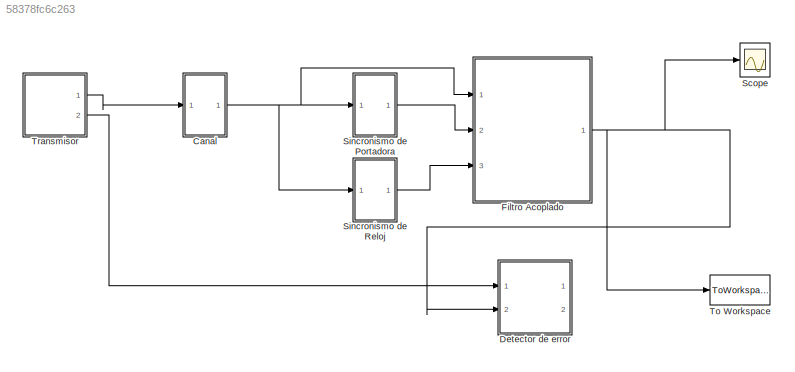
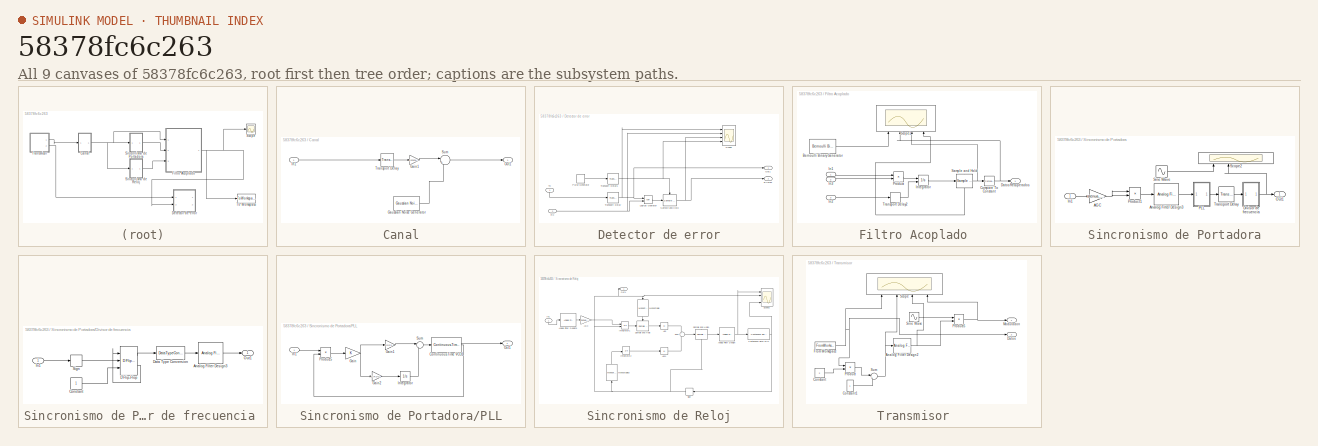
[diagram: thumbnail index - all 9 canvases of the model, root first then tree order]
MODEL slx_58378fc6c263
KIND model
CONFIG AbsTol = auto
CONFIG EnableMultiTasking = off
CONFIG FixedStep = auto
CONFIG MaxStep = auto
CONFIG MinStep = auto
CONFIG RelTol = 1e-3
CONFIG SampleTimeConstraint = Unconstrained
CONFIG Solver = ode45
CONFIG SolverName = ode45
CONFIG StartTime = 0.0
CONFIG StopTime = num_bits*tb
BLOCK [SubSystem] Canal
  Ports = [1, 1]
  RequestExecContextInheritance = off
  Variant = off
BLOCK [Gain] Canal/Gain1
  Gain = 1/atenua_voltaje
  OutDataTypeStr = Inherit: Inherit via internal rule
  ParamDataTypeStr = Inherit: Inherit via internal rule
  SaturateOnIntegerOverflow = off
BLOCK [Reference] Canal/Gaussian Noise Generator  REF=commnoisgen2/Gaussian Noise
Generator
  Ports = [0, 1]
  SourceBlock = commnoisgen2/Gaussian Noise\nGenerator
  SourceType = Gaussian Noise Generator
BLOCK [Inport] Canal/In1
  IconDisplay = Port number
BLOCK [Outport] Canal/Out1
  IconDisplay = Port number
BLOCK [Sum] Canal/Sum
  IconShape = round
  InputSameDT = off
  Inputs = |++
  OutDataTypeStr = Inherit: Inherit via internal rule
  Ports = [2, 1]
  SaturateOnIntegerOverflow = off
BLOCK [TransportDelay] Canal/Transport Delay
  DelayTime = retardo_canal
  Ports = [1, 1]
BLOCK [SubSystem] Detector de error
  Ports = [2, 2]
  RequestExecContextInheritance = off
  Variant = off
BLOCK [Outport] Detector de error/Errores
  IconDisplay = Port number
  Port = 2
BLOCK [Logic] Detector de error/Logical Operator
  AllPortsSameDT = off
  Operator = XOR
  OutDataTypeStr = boolean
  Ports = [2, 1]
BLOCK [Outport] Detector de error/Out1
  IconDisplay = Port number
BLOCK [DiscretePulseGenerator] Detector de error/Pulse Generator
  Period = tb
  Ports = [0, 1]
  PulseType = Time based
  PulseWidth = 50
BLOCK [Inport] Detector de error/RX
  IconDisplay = Port number
  Port = 2
BLOCK [Reference] Detector de error/Sample and Hold  REF=dspsigops/Sample
and Hold
  Ports = [1, 1, 0, 1]
  SourceBlock = dspsigops/Sample\nand Hold
  SourceProductBaseCode = DS
  SourceType = Sample and Hold
BLOCK [Scope] Detector de error/Scope
  NumInputPorts = 4
  Ports = [4]
  ScopeSpecificationString = Simulink.scopes.TimeScopeBlockCfg('CurrentConfiguration', extmgr.ConfigurationSet(extmgr.Configuration('Core','General UI',true,'FigureColor',[0.8 0.8 0.8]),extmgr.Configuration('Core','Source UI',true),extmgr.Configuration('Sources','WiredSimulink',true),extmgr.Configuration('Visuals','Time Domain',true,'SerializedDisplays',{struct('MinYLimReal','-0.125','MaxYLimReal','1.125','YLabelReal','','Min...<+4119ch>
BLOCK [Inport] Detector de error/TX
  IconDisplay = Port number
BLOCK [TransportDelay] Detector de error/Transport Delay
  DelayTime = retardo_canal+retardo_filtro+retardo_decision
  Ports = [1, 1]
BLOCK [TransportDelay] Detector de error/Transport Delay1
  DelayTime = retardo_canal+retardo_filtro+retardo_decision
  Ports = [1, 1]
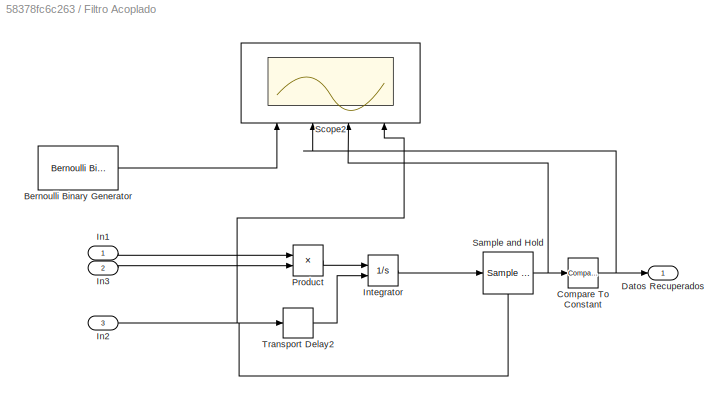
BLOCK [SubSystem] Filtro Acoplado 
  Ports = [3, 1]
  RequestExecContextInheritance = off
  Variant = off
BLOCK [Reference] Filtro Acoplado /Bernoulli Binary Generator  REF=commrandsrc3/Bernoulli Binary
Generator
  Ports = [0, 1]
  SourceBlock = commrandsrc3/Bernoulli Binary\nGenerator
  SourceProductBaseCode = CM
  SourceProductName = Communications System Toolbox
  SourceType = Bernoulli Binary Generator
BLOCK [Reference] Filtro Acoplado /Compare To Constant  REF=simulink/Logic and Bit
Operations/Compare
To Constant
  Ports = [1, 1]
  SourceBlock = simulink/Logic and Bit\nOperations/Compare\nTo Constant
  SourceProductBaseCode = SL
  SourceProductName = Simulink
  SourceType = Compare To Constant
BLOCK [Outport] Filtro Acoplado /Datos Recuperados
  IconDisplay = Port number
BLOCK [Inport] Filtro Acoplado /In1
  IconDisplay = Port number
BLOCK [Inport] Filtro Acoplado /In2
  IconDisplay = Port number
  Port = 3
BLOCK [Inport] Filtro Acoplado /In3
  IconDisplay = Port number
  Port = 2
BLOCK [Integrator] Filtro Acoplado /Integrator
  ExternalReset = rising
  Ports = [2, 1]
BLOCK [Product] Filtro Acoplado /Product
  InputSameDT = off
  OutDataTypeStr = Inherit: Inherit via internal rule
  Ports = [2, 1]
  RndMeth = Floor
  SaturateOnIntegerOverflow = off
BLOCK [Reference] Filtro Acoplado /Sample and Hold  REF=dspsigops/Sample
and Hold
  Ports = [1, 1, 0, 1]
  SourceBlock = dspsigops/Sample\nand Hold
  SourceProductBaseCode = DS
  SourceProductName = DSP System Toolbox
  SourceType = Sample and Hold
BLOCK [Scope] Filtro Acoplado /Scope2
  NumInputPorts = 4
  Ports = [4]
  ScopeSpecificationString = Simulink.scopes.TimeScopeBlockCfg('CurrentConfiguration', extmgr.ConfigurationSet(extmgr.Configuration('Core','General UI',true,'FigureColor',[0.8 0.8 0.8]),extmgr.Configuration('Core','Source UI',true),extmgr.Configuration('Sources','WiredSimulink',true,'DataLoggingVariableName','ScopeData2'),extmgr.Configuration('Visuals','Time Domain',true,'SerializedDisplays',{struct('MinYLimReal','-0.125','Ma...<+4516ch>
BLOCK [TransportDelay] Filtro Acoplado /Transport Delay2
  DelayTime = 1e-6
  Ports = [1, 1]
BLOCK [Scope] Scope
  NumInputPorts = 1
  Ports = [1]
  ScopeSpecificationString = Simulink.scopes.TimeScopeBlockCfg('CurrentConfiguration', extmgr.ConfigurationSet(extmgr.Configuration('Core','General UI',true,'FigureColor',[0.941176470588235 0.941176470588235 0.941176470588235]),extmgr.Configuration('Core','Source UI',true),extmgr.Configuration('Sources','WiredSimulink',true,'DataLoggingVariableName','ScopeData1'),extmgr.Configuration('Visuals','Time Domain',true,'SerializedDi...<+1810ch>
BLOCK [SubSystem] Sincronismo de Portadora
  Ports = [1, 1]
  RequestExecContextInheritance = off
  Variant = off
BLOCK [Gain] Sincronismo de Portadora/AGC
  Gain = atenua_voltaje/Amplitud
  OutDataTypeStr = Inherit: Inherit via internal rule
  ParamDataTypeStr = Inherit: Inherit via internal rule
  SaturateOnIntegerOverflow = off
BLOCK [Reference] Sincronismo de Portadora/Analog Filter Design3  REF=dsparch4/Analog
Filter Design
  Ports = [1, 1]
  SourceBlock = dsparch4/Analog\nFilter Design
  SourceProductBaseCode = DS
  SourceProductName = DSP System Toolbox
  SourceType = Analog Filter Design
BLOCK [SubSystem] Sincronismo de Portadora/Divisor de frecuencia 
  Ports = [1, 1]
  RequestExecContextInheritance = off
  Variant = off
BLOCK [Reference] Sincronismo de Portadora/Divisor de frecuencia /Analog Filter Design3  REF=dsparch4/Analog
Filter Design
  Ports = [1, 1]
  SourceBlock = dsparch4/Analog\nFilter Design
  SourceProductBaseCode = DS
  SourceProductName = DSP System Toolbox
  SourceType = Analog Filter Design
BLOCK [Constant] Sincronismo de Portadora/Divisor de frecuencia /Constant
BLOCK [Reference] Sincronismo de Portadora/Divisor de frecuencia /D Flip-Flop  REF=simulink_extras/Flip Flops/D Flip-Flop
  Ports = [3, 2]
  SourceBlock = simulink_extras/Flip Flops/D Flip-Flop
  SourceProductBaseCode = SL
  SourceProductName = Simulink
  SourceType = DFlipFlop
BLOCK [DataTypeConversion] Sincronismo de Portadora/Divisor de frecuencia /Data Type Conversion
  OutDataTypeStr = double
  RndMeth = Floor
  SaturateOnIntegerOverflow = off
BLOCK [Inport] Sincronismo de Portadora/Divisor de frecuencia /In1
  IconDisplay = Port number
BLOCK [Outport] Sincronismo de Portadora/Divisor de frecuencia /Out1
  IconDisplay = Port number
BLOCK [Signum] Sincronismo de Portadora/Divisor de frecuencia /Sign
BLOCK [Inport] Sincronismo de Portadora/In1
  IconDisplay = Port number
BLOCK [Outport] Sincronismo de Portadora/Out1
  IconDisplay = Port number
BLOCK [SubSystem] Sincronismo de Portadora/PLL
  Ports = [1, 1]
  RequestExecContextInheritance = off
  Variant = off
BLOCK [Reference] Sincronismo de Portadora/PLL/Continuous-Time VCO1  REF=commsynccomp2/Continuous-Time
VCO
  Ports = [1, 1]
  SourceBlock = commsynccomp2/Continuous-Time\nVCO
  SourceProductBaseCode = CM
  SourceProductName = Communications System Toolbox
  SourceType = Continuous-Time VCO
BLOCK [Gain] Sincronismo de Portadora/PLL/Gain
  OutDataTypeStr = Inherit: Inherit via internal rule
  ParamDataTypeStr = Inherit: Inherit via internal rule
  SaturateOnIntegerOverflow = off
BLOCK [Gain] Sincronismo de Portadora/PLL/Gain1
  Gain = R2/R1
  OutDataTypeStr = Inherit: Inherit via internal rule
  ParamDataTypeStr = Inherit: Inherit via internal rule
  SaturateOnIntegerOverflow = off
BLOCK [Gain] Sincronismo de Portadora/PLL/Gain2
  Gain = 1/(R1*C)
  OutDataTypeStr = Inherit: Inherit via internal rule
  ParamDataTypeStr = Inherit: Inherit via internal rule
  SaturateOnIntegerOverflow = off
BLOCK [Inport] Sincronismo de Portadora/PLL/In1
  IconDisplay = Port number
BLOCK [Integrator] Sincronismo de Portadora/PLL/Integrator
  Ports = [1, 1]
BLOCK [Outport] Sincronismo de Portadora/PLL/Out1
  IconDisplay = Port number
BLOCK [Product] Sincronismo de Portadora/PLL/Product5
  InputSameDT = off
  OutDataTypeStr = Inherit: Inherit via internal rule
  Ports = [2, 1]
  RndMeth = Floor
  SaturateOnIntegerOverflow = off
BLOCK [Sum] Sincronismo de Portadora/PLL/Sum
  IconShape = round
  InputSameDT = off
  Inputs = |++
  OutDataTypeStr = Inherit: Inherit via internal rule
  Ports = [2, 1]
  SaturateOnIntegerOverflow = off
BLOCK [Product] Sincronismo de Portadora/Product1
  InputSameDT = off
  OutDataTypeStr = Inherit: Inherit via internal rule
  Ports = [2, 1]
  RndMeth = Floor
  SaturateOnIntegerOverflow = off
BLOCK [Scope] Sincronismo de Portadora/Scope2
  NumInputPorts = 4
  Ports = [4]
  ScopeSpecificationString = Simulink.scopes.TimeScopeBlockCfg('CurrentConfiguration', extmgr.ConfigurationSet(extmgr.Configuration('Core','General UI',true,'FigureColor',[0.8 0.8 0.8]),extmgr.Configuration('Core','Source UI',true),extmgr.Configuration('Sources','WiredSimulink',true,'DataLoggingVariableName','ScopeData2'),extmgr.Configuration('Visuals','Time Domain',true,'SerializedDisplays',{struct('MinYLimReal','-1.25','Max...<+4499ch>
BLOCK [Sin] Sincronismo de Portadora/Sine Wave
  Amplitude = Amplitud
  Frequency = 2*pi*(fc)
  Ports = [0, 1]
  SampleTime = 0
BLOCK [TransportDelay] Sincronismo de Portadora/Transport Delay
  DelayTime = 1/(8*fc)
  Ports = [1, 1]
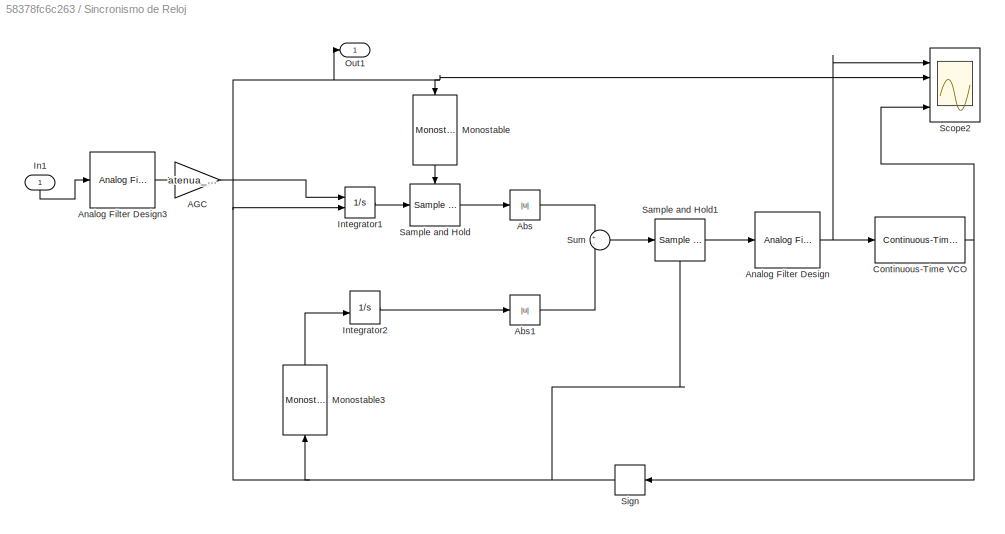
BLOCK [SubSystem] Sincronismo de Reloj
  Ports = [1, 1]
  RequestExecContextInheritance = off
  Variant = off
BLOCK [Gain] Sincronismo de Reloj/AGC
  Commented = through
  Gain = atenua_voltaje/Amplitud
  OutDataTypeStr = Inherit: Inherit via internal rule
  ParamDataTypeStr = Inherit: Inherit via internal rule
  SaturateOnIntegerOverflow = off
BLOCK [Abs] Sincronismo de Reloj/Abs
  SaturateOnIntegerOverflow = off
BLOCK [Abs] Sincronismo de Reloj/Abs1
  SaturateOnIntegerOverflow = off
BLOCK [Reference] Sincronismo de Reloj/Analog Filter Design  REF=dsparch4/Analog
Filter Design
  Ports = [1, 1]
  SourceBlock = dsparch4/Analog\nFilter Design
  SourceProductBaseCode = DS
  SourceProductName = DSP System Toolbox
  SourceType = Analog Filter Design
BLOCK [Reference] Sincronismo de Reloj/Analog Filter Design3  REF=dsparch4/Analog
Filter Design
  Ports = [1, 1]
  SourceBlock = dsparch4/Analog\nFilter Design
  SourceProductBaseCode = DS
  SourceProductName = DSP System Toolbox
  SourceType = Analog Filter Design
BLOCK [Reference] Sincronismo de Reloj/Continuous-Time VCO  REF=commsynccomp2/Continuous-Time
VCO
  Ports = [1, 1]
  SourceBlock = commsynccomp2/Continuous-Time\nVCO
  SourceProductBaseCode = CM
  SourceProductName = Communications System Toolbox
  SourceType = Continuous-Time VCO
BLOCK [Inport] Sincronismo de Reloj/In1
  IconDisplay = Port number
BLOCK [Integrator] Sincronismo de Reloj/Integrator1
  ExternalReset = rising
  Ports = [2, 1]
BLOCK [Integrator] Sincronismo de Reloj/Integrator2
  ExternalReset = falling
  Ports = [2, 1]
BLOCK [Reference] Sincronismo de Reloj/Monostable  REF=powerlib_extras/Control 
Blocks/Monostable
  Ports = [1, 1]
  SourceBlock = powerlib_extras/Control \nBlocks/Monostable
  SourceType = Monostable Flip-Flop
BLOCK [Reference] Sincronismo de Reloj/Monostable3  REF=powerlib_extras/Control 
Blocks/Monostable
  Ports = [1, 1]
  SourceBlock = powerlib_extras/Control \nBlocks/Monostable
  SourceType = Monostable Flip-Flop
BLOCK [Outport] Sincronismo de Reloj/Out1
  IconDisplay = Port number
BLOCK [Reference] Sincronismo de Reloj/Sample and Hold  REF=dspsigops/Sample
and Hold
  Ports = [1, 1, 0, 1]
  SourceBlock = dspsigops/Sample\nand Hold
  SourceProductBaseCode = DS
  SourceProductName = DSP System Toolbox
  SourceType = Sample and Hold
BLOCK [Reference] Sincronismo de Reloj/Sample and Hold1  REF=dspsigops/Sample
and Hold
  Ports = [1, 1, 0, 1]
  SourceBlock = dspsigops/Sample\nand Hold
  SourceProductBaseCode = DS
  SourceProductName = DSP System Toolbox
  SourceType = Sample and Hold
BLOCK [Scope] Sincronismo de Reloj/Scope2
  NumInputPorts = 4
  Ports = [4]
  ScopeSpecificationString = Simulink.scopes.TimeScopeBlockCfg('CurrentConfiguration', extmgr.ConfigurationSet(extmgr.Configuration('Core','General UI',true,'FigureColor',[0.8 0.8 0.8]),extmgr.Configuration('Core','Source UI',true),extmgr.Configuration('Sources','WiredSimulink',true,'DataLoggingVariableName','ScopeData3'),extmgr.Configuration('Visuals','Time Domain',true,'SerializedDisplays',{struct('MinYLimReal','-0.0000001'...<+4170ch>
BLOCK [Signum] Sincronismo de Reloj/Sign
BLOCK [Sum] Sincronismo de Reloj/Sum
  IconShape = round
  InputSameDT = off
  Inputs = +-
  OutDataTypeStr = Inherit: Inherit via internal rule
  Ports = [2, 1]
  SaturateOnIntegerOverflow = off
BLOCK [ToWorkspace] To Workspace
  FixptAsFi = on
  MaxDataPoints = inf
  Ports = [1]
  SampleTime = -1
  Save2DSignal = 2-D array (concatenate along first dimension)
  SaveFormat = Structure With Time
  VariableName = Datos_salida
BLOCK [SubSystem] Transmisor 
  Ports = [0, 2]
  RequestExecContextInheritance = off
  Variant = off
BLOCK [Reference] Transmisor /Analog Filter Design2  REF=dsparch4/Analog
Filter Design
  Ports = [1, 1]
  SourceBlock = dsparch4/Analog\nFilter Design
  SourceProductBaseCode = DS
  SourceProductName = DSP System Toolbox
  SourceType = Analog Filter Design
BLOCK [Constant] Transmisor /Constant
  Value = 2
BLOCK [Constant] Transmisor /Constant1
BLOCK [Outport] Transmisor /Datos
  IconDisplay = Port number
  Port = 2
BLOCK [FromWorkspace] Transmisor /From Workspace
  SampleTime = 0
  VariableName = Datos2
  ZeroCross = on
BLOCK [Outport] Transmisor /Modulacion
  IconDisplay = Port number
BLOCK [Product] Transmisor /Product
  InputSameDT = off
  OutDataTypeStr = Inherit: Inherit via internal rule
  Ports = [2, 1]
  RndMeth = Floor
  SaturateOnIntegerOverflow = off
BLOCK [Product] Transmisor /Product5
  InputSameDT = off
  OutDataTypeStr = Inherit: Inherit via internal rule
  Ports = [2, 1]
  SaturateOnIntegerOverflow = off
BLOCK [Scope] Transmisor /Scope
  NumInputPorts = 4
  Ports = [4]
  ScopeSpecificationString = Simulink.scopes.TimeScopeBlockCfg('CurrentConfiguration', extmgr.ConfigurationSet(extmgr.Configuration('Core','General UI',true),extmgr.Configuration('Core','Source UI',true),extmgr.Configuration('Sources','WiredSimulink',true,'DataLoggingVariableName','ScopeData1'),extmgr.Configuration('Visuals','Time Domain',true,'SerializedDisplays',{struct('MinYLimReal','-0.125','MaxYLimReal','1.125','YLabelRe...<+3417ch>
BLOCK [Sin] Transmisor /Sine Wave
  Amplitude = Amplitud
  Frequency = 2*pi*(fc)
  Ports = [0, 1]
  SampleTime = 0
BLOCK [Sum] Transmisor /Sum
  IconShape = round
  InputSameDT = off
  Inputs = |+-
  OutDataTypeStr = Inherit: Inherit via internal rule
  Ports = [2, 1]
  SaturateOnIntegerOverflow = off
LINE Canal/Gain1:1 -> Canal/Sum:1
LINE Canal/Gaussian Noise Generator:1 -> Canal/Sum:2
LINE Canal/In1:1 -> Canal/Transport Delay:1
LINE Canal/Sum:1 -> Canal/Out1:1
LINE Canal/Transport Delay:1 -> Canal/Gain1:1
NET Canal:1 -> Filtro Acoplado :1, Sincronismo de Portadora:1, Sincronismo de Reloj:1
LINE Detector de error/Logical Operator:1 -> Detector de error/Sample and Hold:1
LINE Detector de error/Pulse Generator:1 -> Detector de error/Transport Delay1:1
NET Detector de error/RX:1 -> Detector de error/Logical Operator:2, Detector de error/Scope:2
NET Detector de error/Sample and Hold:1 -> Detector de error/Errores:1, Detector de error/Scope:3
LINE Detector de error/TX:1 -> Detector de error/Transport Delay:1
NET Detector de error/Transport Delay1:1 -> Detector de error/Sample and Hold:trigger, Detector de error/Scope:4
NET Detector de error/Transport Delay:1 -> Detector de error/Logical Operator:1, Detector de error/Out1:1, Detector de error/Scope:1
LINE Filtro Acoplado /Bernoulli Binary Generator:1 -> Filtro Acoplado /Scope2:1
NET Filtro Acoplado /Compare To Constant:1 -> Filtro Acoplado /Datos Recuperados:1, Filtro Acoplado /Scope2:2
LINE Filtro Acoplado /In1:1 -> Filtro Acoplado /Product:1
NET Filtro Acoplado /In2:1 -> Filtro Acoplado /Sample and Hold:trigger, Filtro Acoplado /Scope2:4, Filtro Acoplado /Transport Delay2:1
LINE Filtro Acoplado /In3:1 -> Filtro Acoplado /Product:2
LINE Filtro Acoplado /Integrator:1 -> Filtro Acoplado /Sample and Hold:1
LINE Filtro Acoplado /Product:1 -> Filtro Acoplado /Integrator:1
NET Filtro Acoplado /Sample and Hold:1 -> Filtro Acoplado /Compare To Constant:1, Filtro Acoplado /Scope2:3
LINE Filtro Acoplado /Transport Delay2:1 -> Filtro Acoplado /Integrator:2
NET Filtro Acoplado :1 -> Detector de error:2, Scope:1, To Workspace:1
NET Sincronismo de Portadora/AGC:1 -> Sincronismo de Portadora/Product1:1, Sincronismo de Portadora/Product1:2
LINE Sincronismo de Portadora/Analog Filter Design3:1 -> Sincronismo de Portadora/PLL:1
LINE Sincronismo de Portadora/Divisor de frecuencia /Analog Filter Design3:1 -> Sincronismo de Portadora/Divisor de frecuencia /Out1:1
LINE Sincronismo de Portadora/Divisor de frecuencia /Constant:1 -> Sincronismo de Portadora/Divisor de frecuencia /D Flip-Flop:3
LINE Sincronismo de Portadora/Divisor de frecuencia /D Flip-Flop:1 -> Sincronismo de Portadora/Divisor de frecuencia /Data Type Conversion:1
LINE Sincronismo de Portadora/Divisor de frecuencia /D Flip-Flop:2 -> Sincronismo de Portadora/Divisor de frecuencia /D Flip-Flop:1
LINE Sincronismo de Portadora/Divisor de frecuencia /Data Type Conversion:1 -> Sincronismo de Portadora/Divisor de frecuencia /Analog Filter Design3:1
LINE Sincronismo de Portadora/Divisor de frecuencia /In1:1 -> Sincronismo de Portadora/Divisor de frecuencia /Sign:1
LINE Sincronismo de Portadora/Divisor de frecuencia /Sign:1 -> Sincronismo de Portadora/Divisor de frecuencia /D Flip-Flop:2
NET Sincronismo de Portadora/Divisor de frecuencia :1 -> Sincronismo de Portadora/Out1:1, Sincronismo de Portadora/Scope2:2
LINE Sincronismo de Portadora/In1:1 -> Sincronismo de Portadora/AGC:1
NET Sincronismo de Portadora/PLL/Continuous-Time VCO1:1 -> Sincronismo de Portadora/PLL/Out1:1, Sincronismo de Portadora/PLL/Product5:2
LINE Sincronismo de Portadora/PLL/Gain1:1 -> Sincronismo de Portadora/PLL/Sum:1
LINE Sincronismo de Portadora/PLL/Gain2:1 -> Sincronismo de Portadora/PLL/Integrator:1
NET Sincronismo de Portadora/PLL/Gain:1 -> Sincronismo de Portadora/PLL/Gain1:1, Sincronismo de Portadora/PLL/Gain2:1
LINE Sincronismo de Portadora/PLL/In1:1 -> Sincronismo de Portadora/PLL/Product5:1
LINE Sincronismo de Portadora/PLL/Integrator:1 -> Sincronismo de Portadora/PLL/Sum:2
LINE Sincronismo de Portadora/PLL/Product5:1 -> Sincronismo de Portadora/PLL/Gain:1
LINE Sincronismo de Portadora/PLL/Sum:1 -> Sincronismo de Portadora/PLL/Continuous-Time VCO1:1
LINE Sincronismo de Portadora/PLL:1 -> Sincronismo de Portadora/Transport Delay:1
LINE Sincronismo de Portadora/Product1:1 -> Sincronismo de Portadora/Analog Filter Design3:1
LINE Sincronismo de Portadora/Sine Wave:1 -> Sincronismo de Portadora/Scope2:1
LINE Sincronismo de Portadora/Transport Delay:1 -> Sincronismo de Portadora/Divisor de frecuencia :1
LINE Sincronismo de Portadora:1 -> Filtro Acoplado :2
LINE Sincronismo de Reloj/AGC:1 -> Sincronismo de Reloj/Integrator1:1
LINE Sincronismo de Reloj/Abs1:1 -> Sincronismo de Reloj/Sum:2
LINE Sincronismo de Reloj/Abs:1 -> Sincronismo de Reloj/Sum:1
LINE Sincronismo de Reloj/Analog Filter Design3:1 -> Sincronismo de Reloj/AGC:1
NET Sincronismo de Reloj/Analog Filter Design:1 -> Sincronismo de Reloj/Continuous-Time VCO:1, Sincronismo de Reloj/Scope2:1
NET Sincronismo de Reloj/Continuous-Time VCO:1 -> Sincronismo de Reloj/Scope2:4, Sincronismo de Reloj/Sign:1
LINE Sincronismo de Reloj/In1:1 -> Sincronismo de Reloj/Analog Filter Design3:1
LINE Sincronismo de Reloj/Integrator1:1 -> Sincronismo de Reloj/Sample and Hold:1
LINE Sincronismo de Reloj/Integrator2:1 -> Sincronismo de Reloj/Abs1:1
LINE Sincronismo de Reloj/Monostable3:1 -> Sincronismo de Reloj/Integrator2:2
LINE Sincronismo de Reloj/Monostable:1 -> Sincronismo de Reloj/Sample and Hold:trigger
LINE Sincronismo de Reloj/Sample and Hold1:1 -> Sincronismo de Reloj/Analog Filter Design:1
LINE Sincronismo de Reloj/Sample and Hold:1 -> Sincronismo de Reloj/Abs:1
NET Sincronismo de Reloj/Sign:1 -> Sincronismo de Reloj/Integrator1:2, Sincronismo de Reloj/Monostable3:1, Sincronismo de Reloj/Monostable:1, Sincronismo de Reloj/Out1:1, Sincronismo de Reloj/Sample and Hold1:trigger, Sincronismo de Reloj/Scope2:2
LINE Sincronismo de Reloj/Sum:1 -> Sincronismo de Reloj/Sample and Hold1:1
LINE Sincronismo de Reloj:1 -> Filtro Acoplado :3
NET Transmisor /Analog Filter Design2:1 -> Transmisor /Product5:2, Transmisor /Scope:3
LINE Transmisor /Constant1:1 -> Transmisor /Sum:2
LINE Transmisor /Constant:1 -> Transmisor /Product:2
NET Transmisor /From Workspace:1 -> Transmisor /Datos:1, Transmisor /Product:1, Transmisor /Scope:1
NET Transmisor /Product5:1 -> Transmisor /Modulacion:1, Transmisor /Scope:4
LINE Transmisor /Product:1 -> Transmisor /Sum:1
LINE Transmisor /Sine Wave:1 -> Transmisor /Product5:1
NET Transmisor /Sum:1 -> Transmisor /Analog Filter Design2:1, Transmisor /Scope:2
LINE Transmisor :1 -> Canal:1
LINE Transmisor :2 -> Detector de error:1
note: NET lines group one-source signal fan-out (src -> all destinations, sorted); 1:1 wires keep LINE
